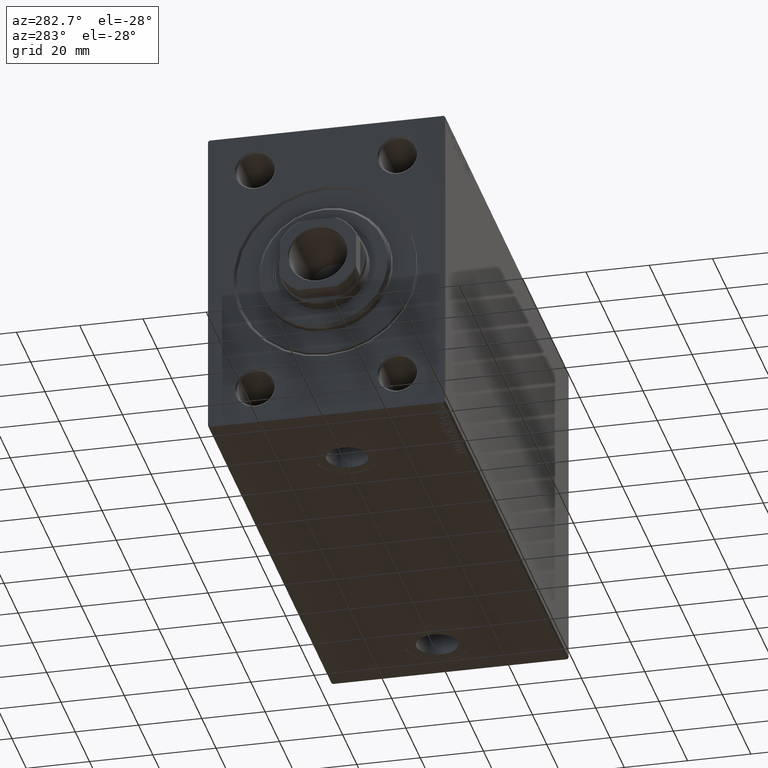
[diagram: clean part render]
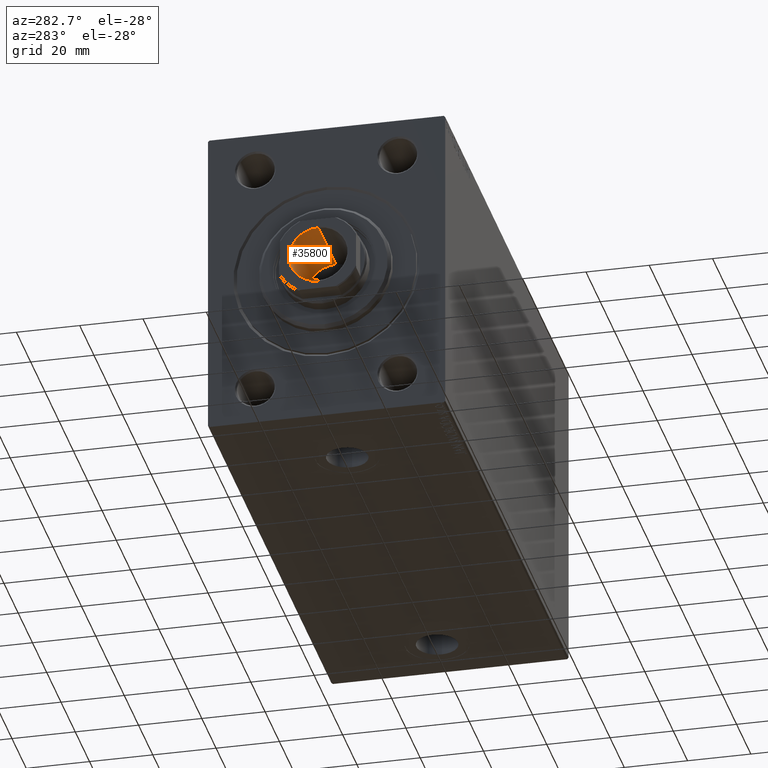
[diagram: same view with one face highlighted and labeled with its STEP entity id]
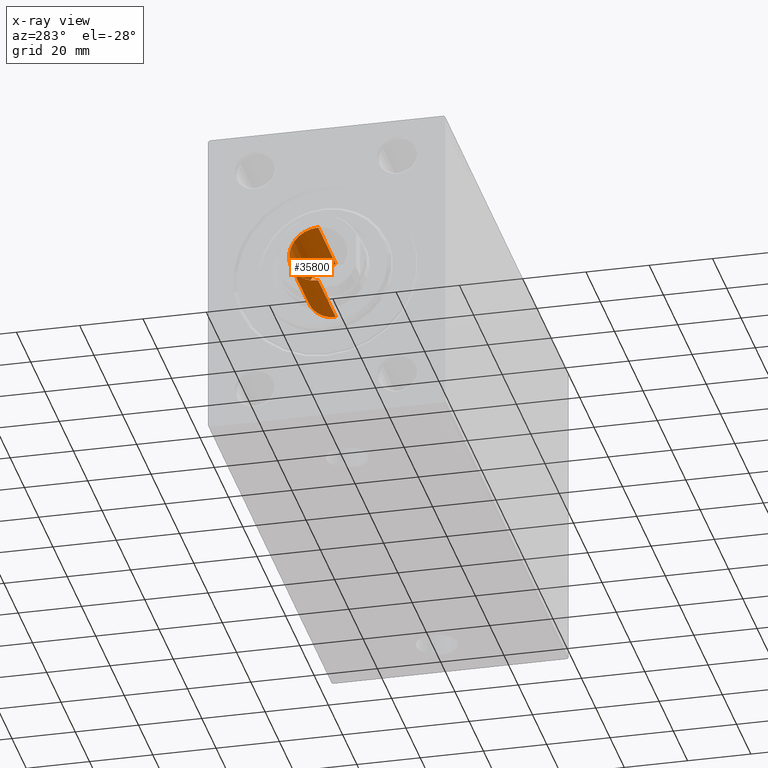
[diagram: x-ray of the same camera — body ghosted, the highlighted face saturated]
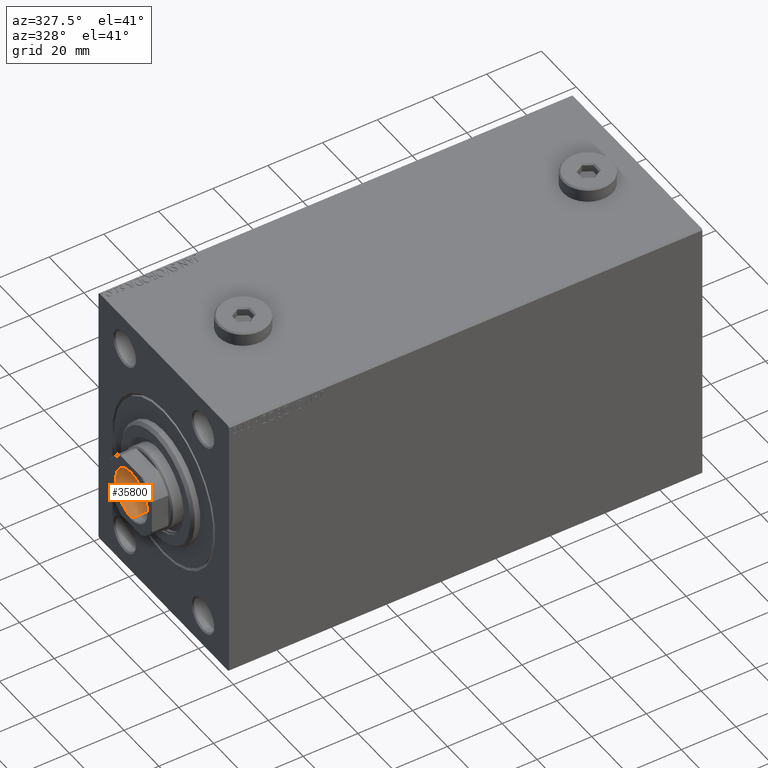
[diagram: same view with one face highlighted and labeled with its STEP entity id]
A machine part, auxiliary view. The second image highlights one B-rep face of the part: STEP entity #35800.
The next image is the same camera in x-ray: the body ghosted, the highlighted face saturated — about 0% of this face is hidden behind the body in this view.
A second angle (auxiliary view) of the same face is appended — the face is thin or edge-on in the first view.
In plain terms, the highlighted cylindrical surface (edge-blend (fillet) strip) has radius 9.25 mm, axis along (-1, 0, 0).
Its self-contained STEP definition (entity closure, byte-faithful):
#1231 = VERTEX_POINT ( 'NONE', #29380 ) ;
#7245 = VECTOR ( 'NONE', #7916, 1000.000000000000000 ) ;
#7916 = DIRECTION ( 'NONE',  ( -0.000000000000000000, -0.000000000000000000, 1.000000000000000000 ) ) ;
#9524 = CARTESIAN_POINT ( 'NONE',  ( -9.249999999999994671, 1.132798289211300909E-15, 170.9999999999999716 ) ) ;
#9911 = VECTOR ( 'NONE', #19678, 1000.000000000000000 ) ;
#9915 = DIRECTION ( 'NONE',  ( -0.000000000000000000, -0.000000000000000000, 1.000000000000000000 ) ) ;
#10245 = EDGE_CURVE ( 'NONE', #11992, #30822, #22906, .T. ) ;
#11259 = EDGE_CURVE ( 'NONE', #37855, #11992, #18075, .T. ) ;
#11992 = VERTEX_POINT ( 'NONE', #43071 ) ;
#12954 = FACE_OUTER_BOUND ( 'NONE', #37384, .T. ) ;
#15684 = CARTESIAN_POINT ( 'NONE',  ( 0.000000000000000000, 0.000000000000000000, 170.6999999999999886 ) ) ;
#15688 = CARTESIAN_POINT ( 'NONE',  ( 0.000000000000000000, 0.000000000000000000, 146.0000000000000000 ) ) ;
#18075 = CIRCLE ( 'NONE', #31338, 9.249999999999994671 ) ;
#19678 = DIRECTION ( 'NONE',  ( -0.000000000000000000, -0.000000000000000000, 1.000000000000000000 ) ) ;
#22906 = LINE ( 'NONE', #9524, #9911 ) ;
#22976 = ORIENTED_EDGE ( 'NONE', *, *, #10245, .F. ) ;
#23770 = EDGE_CURVE ( 'NONE', #37855, #1231, #25458, .T. ) ;
#24196 = CARTESIAN_POINT ( 'NONE',  ( -9.249999999999994671, 1.132798289211300909E-15, 170.6999999999999886 ) ) ;
#24486 = DIRECTION ( 'NONE',  ( -0.000000000000000000, -0.000000000000000000, 1.000000000000000000 ) ) ;
#25458 = LINE ( 'NONE', #39559, #7245 ) ;
#27354 = ORIENTED_EDGE ( 'NONE', *, *, #11259, .F. ) ;
#28365 = DIRECTION ( 'NONE',  ( 1.000000000000000000, 0.000000000000000000, 0.000000000000000000 ) ) ;
#29380 = CARTESIAN_POINT ( 'NONE',  ( 9.249999999999994671, 0.000000000000000000, 170.6999999999999886 ) ) ;
#30822 = VERTEX_POINT ( 'NONE', #24196 ) ;
#31338 = AXIS2_PLACEMENT_3D ( 'NONE', #15688, #9915, #28365 ) ;
#31344 = ORIENTED_EDGE ( 'NONE', *, *, #41202, .T. ) ;
#31766 = AXIS2_PLACEMENT_3D ( 'NONE', #38124, #24486, #34656 ) ;
#33253 = DIRECTION ( 'NONE',  ( 1.000000000000000000, 0.000000000000000000, 0.000000000000000000 ) ) ;
#33977 = CYLINDRICAL_SURFACE ( 'NONE', #31766, 9.249999999999994671 ) ;
#34364 = CARTESIAN_POINT ( 'NONE',  ( 9.249999999999994671, 0.000000000000000000, 146.0000000000000000 ) ) ;
#34510 = ORIENTED_EDGE ( 'NONE', *, *, #23770, .T. ) ;
#34656 = DIRECTION ( 'NONE',  ( 1.000000000000000000, 0.000000000000000000, 0.000000000000000000 ) ) ;
#34840 = CIRCLE ( 'NONE', #36303, 9.249999999999994671 ) ;
#35800 = ADVANCED_FACE ( 'NONE', ( #12954 ), #33977, .F. ) ;
#36303 = AXIS2_PLACEMENT_3D ( 'NONE', #15684, #36721, #33253 ) ;
#36721 = DIRECTION ( 'NONE',  ( 0.000000000000000000, 0.000000000000000000, 1.000000000000000000 ) ) ;
#37384 = EDGE_LOOP ( 'NONE', ( #22976, #27354, #34510, #31344 ) ) ;
#37855 = VERTEX_POINT ( 'NONE', #34364 ) ;
#38124 = CARTESIAN_POINT ( 'NONE',  ( 0.000000000000000000, 0.000000000000000000, 170.9999999999999716 ) ) ;
#39559 = CARTESIAN_POINT ( 'NONE',  ( 9.249999999999994671, 0.000000000000000000, 170.9999999999999716 ) ) ;
#41202 = EDGE_CURVE ( 'NONE', #1231, #30822, #34840, .T. ) ;
#43071 = CARTESIAN_POINT ( 'NONE',  ( -9.249999999999994671, 1.132798289211300909E-15, 146.0000000000000000 ) ) ;